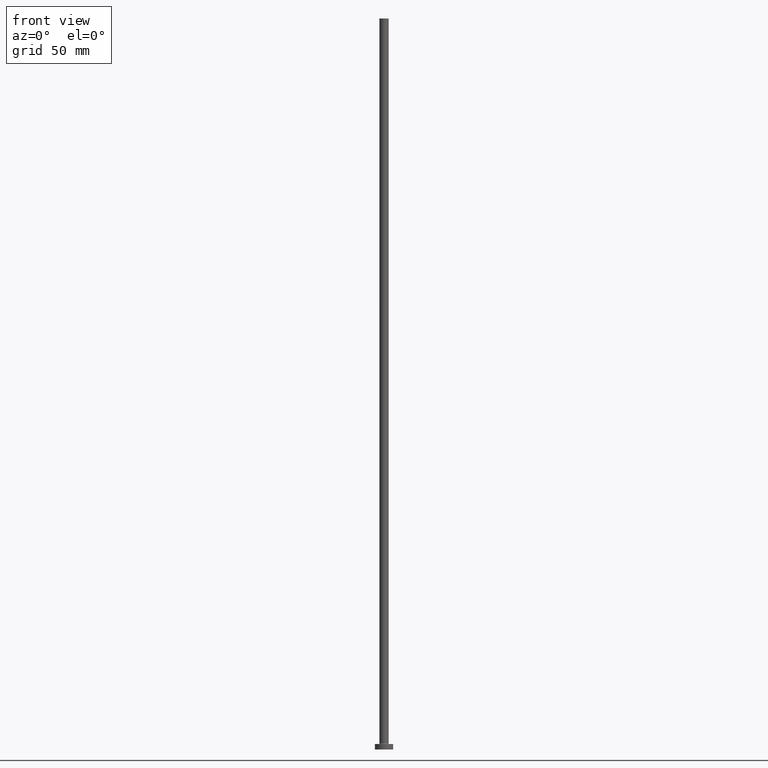
[diagram: clean part render]
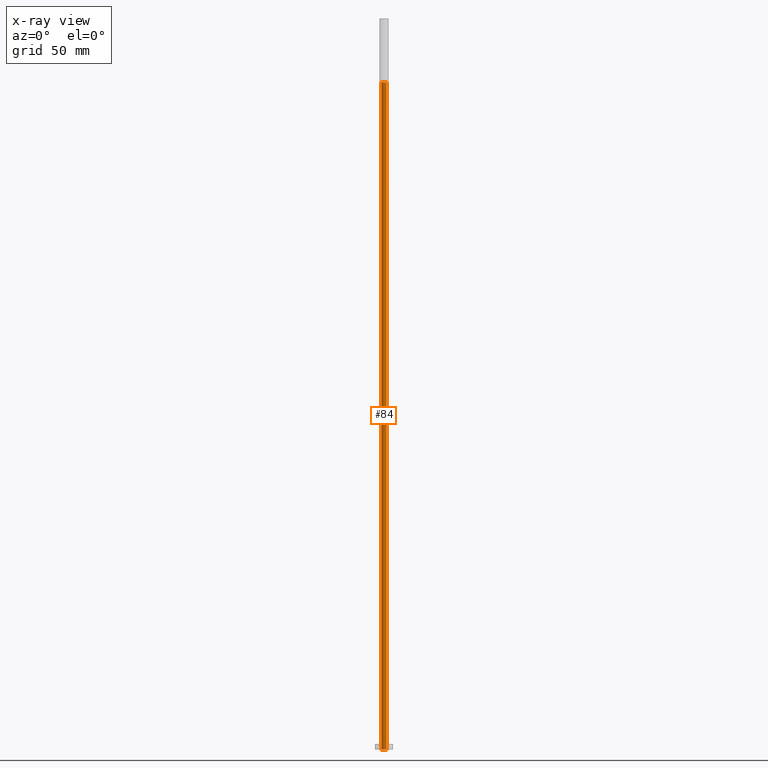
[diagram: x-ray — body ghosted, one internal face saturated and labeled with its STEP entity id]
A machine part, front view, then the same camera in x-ray: the body is ghosted and one INTERNAL B-rep face — a face not visible from any outside direction — is saturated and labeled: STEP entity #84.
In plain terms, the highlighted cylindrical surface (edge-blend (fillet) strip) has radius 1.4 mm, axis along (0, 0, -1).
Its self-contained STEP definition (entity closure, byte-faithful):
#4 = VERTEX_POINT ( 'NONE', #315 ) ;
#8 = CARTESIAN_POINT ( 'NONE',  ( 0.000000000000000000, 0.000000000000000000, 368.9597979746446299 ) ) ;
#26 = VECTOR ( 'NONE', #292, 1000.000000000000000 ) ;
#51 = CARTESIAN_POINT ( 'NONE',  ( 1.399999999999999911, 1.714505518806294391E-16, 368.9597979746446299 ) ) ;
#55 = CARTESIAN_POINT ( 'NONE',  ( 0.000000000000000000, 0.000000000000000000, 0.000000000000000000 ) ) ;
#58 = ORIENTED_EDGE ( 'NONE', *, *, #426, .T. ) ;
#67 = CARTESIAN_POINT ( 'NONE',  ( 1.399999999999999911, 1.714505518806294391E-16, 0.000000000000000000 ) ) ;
#80 = EDGE_LOOP ( 'NONE', ( #58, #384, #340, #141 ) ) ;
#84 = ADVANCED_FACE ( 'NONE', ( #364 ), #222, .F. ) ;
#87 = CARTESIAN_POINT ( 'NONE',  ( -1.399999999999999911, 0.000000000000000000, 365.0000000000000000 ) ) ;
#100 = CIRCLE ( 'NONE', #149, 1.399999999999999911 ) ;
#108 = VERTEX_POINT ( 'NONE', #87 ) ;
#117 = DIRECTION ( 'NONE',  ( 0.000000000000000000, 0.000000000000000000, 1.000000000000000000 ) ) ;
#118 = EDGE_CURVE ( 'NONE', #276, #301, #435, .T. ) ;
#123 = AXIS2_PLACEMENT_3D ( 'NONE', #8, #403, #157 ) ;
#141 = ORIENTED_EDGE ( 'NONE', *, *, #143, .F. ) ;
#143 = EDGE_CURVE ( 'NONE', #108, #301, #228, .T. ) ;
#149 = AXIS2_PLACEMENT_3D ( 'NONE', #359, #117, #430 ) ;
#157 = DIRECTION ( 'NONE',  ( -1.000000000000000000, 0.000000000000000000, 0.000000000000000000 ) ) ;
#205 = CARTESIAN_POINT ( 'NONE',  ( -1.399999999999999911, 0.000000000000000000, 0.000000000000000000 ) ) ;
#222 = CYLINDRICAL_SURFACE ( 'NONE', #123, 1.399999999999999911 ) ;
#228 = LINE ( 'NONE', #399, #26 ) ;
#257 = EDGE_CURVE ( 'NONE', #4, #276, #357, .T. ) ;
#260 = DIRECTION ( 'NONE',  ( 1.000000000000000000, 0.000000000000000000, 0.000000000000000000 ) ) ;
#276 = VERTEX_POINT ( 'NONE', #67 ) ;
#292 = DIRECTION ( 'NONE',  ( 0.000000000000000000, 0.000000000000000000, -1.000000000000000000 ) ) ;
#301 = VERTEX_POINT ( 'NONE', #205 ) ;
#315 = CARTESIAN_POINT ( 'NONE',  ( 1.399999999999999911, 1.714505518806294391E-16, 365.0000000000000000 ) ) ;
#326 = DIRECTION ( 'NONE',  ( -0.000000000000000000, -0.000000000000000000, -1.000000000000000000 ) ) ;
#339 = VECTOR ( 'NONE', #397, 1000.000000000000000 ) ;
#340 = ORIENTED_EDGE ( 'NONE', *, *, #118, .T. ) ;
#357 = LINE ( 'NONE', #51, #339 ) ;
#359 = CARTESIAN_POINT ( 'NONE',  ( 0.000000000000000000, 0.000000000000000000, 365.0000000000000000 ) ) ;
#364 = FACE_OUTER_BOUND ( 'NONE', #80, .T. ) ;
#384 = ORIENTED_EDGE ( 'NONE', *, *, #257, .T. ) ;
#397 = DIRECTION ( 'NONE',  ( 0.000000000000000000, 0.000000000000000000, -1.000000000000000000 ) ) ;
#399 = CARTESIAN_POINT ( 'NONE',  ( -1.399999999999999911, 0.000000000000000000, 368.9597979746446299 ) ) ;
#403 = DIRECTION ( 'NONE',  ( 0.000000000000000000, 0.000000000000000000, -1.000000000000000000 ) ) ;
#418 = AXIS2_PLACEMENT_3D ( 'NONE', #55, #326, #260 ) ;
#426 = EDGE_CURVE ( 'NONE', #108, #4, #100, .T. ) ;
#430 = DIRECTION ( 'NONE',  ( 1.000000000000000000, 0.000000000000000000, 0.000000000000000000 ) ) ;
#435 = CIRCLE ( 'NONE', #418, 1.399999999999999911 ) ;